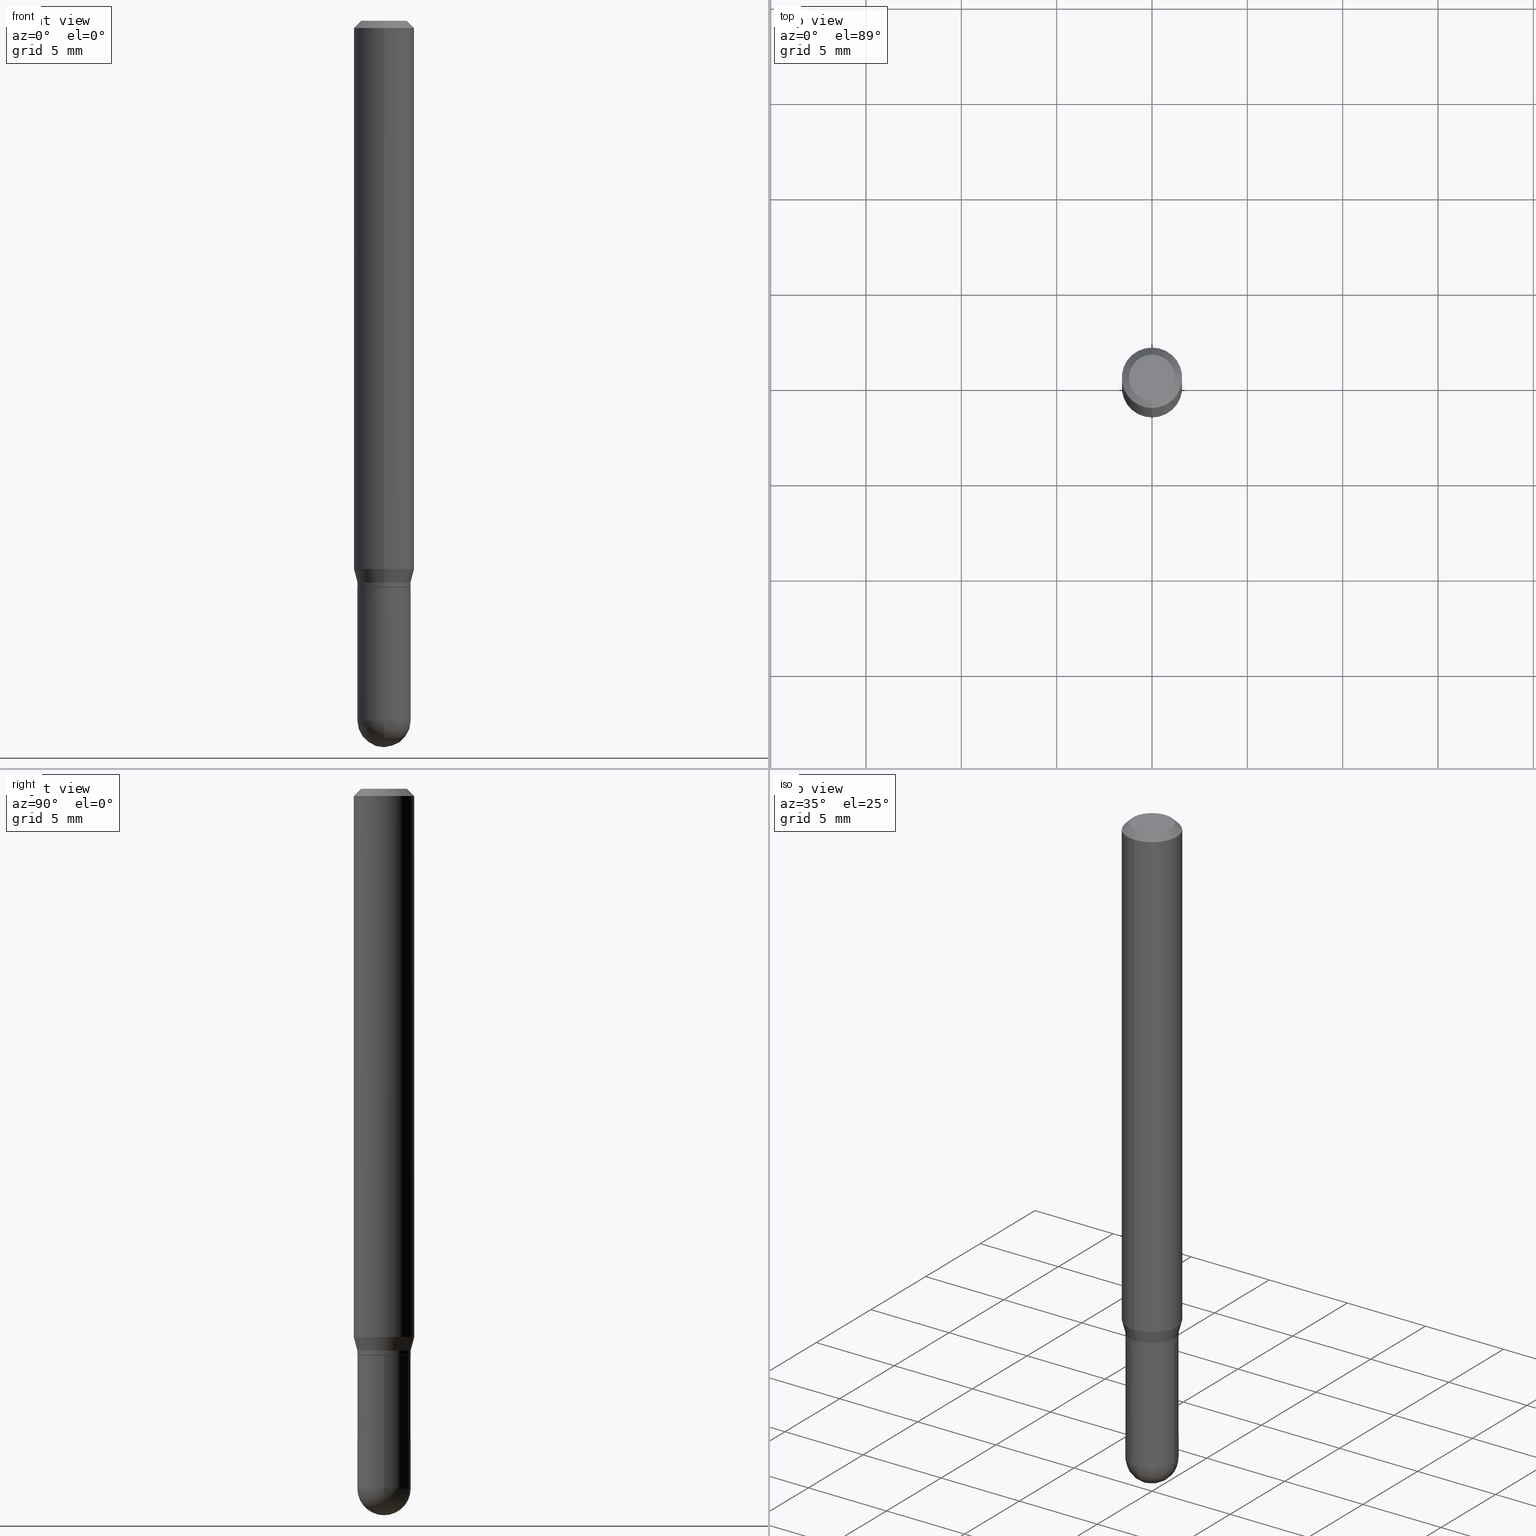
[diagram: canonical four-view strip — front | top / right | iso, engineering-drawing reading convention]
A machine part, canonical four-view strip (front | top / right | iso — engineering-drawing reading convention). The complete STEP part file that produces these views, byte-faithful:
ISO-10303-21;
HEADER;
FILE_DESCRIPTION (( 'STEP AP203' ),
    '1' );
FILE_NAME ('00510.STEP',
    '2024-03-07T17:59:53',
    ( '' ),
    ( '' ),
    'SwSTEP 2.0',
    'SolidWorks 2023',
    '' );
FILE_SCHEMA (( 'CONFIG_CONTROL_DESIGN' ));
ENDSEC;

DATA;
#1 = APPROVAL_ROLE ( '' ) ;
#2 = ORIENTED_EDGE ( 'NONE', *, *, #245, .F. ) ;
#3 = ORIENTED_EDGE ( 'NONE', *, *, #153, .T. ) ;
#4 = ORIENTED_EDGE ( 'NONE', *, *, #119, .F. ) ;
#5 = DATE_AND_TIME ( #394, #118 ) ;
#6 = CARTESIAN_POINT ( 'NONE',  ( 3.872457909892831963E-16, 0.05449999999999591282, -1.170000000000000151 ) ) ;
#7 = ORIENTED_EDGE ( 'NONE', *, *, #185, .F. ) ;
#8 = CIRCLE ( 'NONE', #289, 0.04749999999999999362 ) ;
#9 = DIRECTION ( 'NONE',  ( -6.982962677686266711E-15, -1.000000000000000000, 3.491921625732121546E-15 ) ) ;
#10 = CARTESIAN_POINT ( 'NONE',  ( 3.528999010347036160E-29, -5.051926092023656149E-15, -1.445000000000000062 ) ) ;
#11 = CARTESIAN_POINT ( 'NONE',  ( 2.861198503236610065E-29, -4.085033166446480067E-15, -1.170000000000000151 ) ) ;
#12 = CARTESIAN_POINT ( 'NONE',  ( 2.836387172372829347E-29, -4.050629085849261104E-15, -1.160000000000000142 ) ) ;
#13 = DIRECTION ( 'NONE',  ( -2.445161355493817803E-29, 3.491921625732120757E-15, 1.000000000000000000 ) ) ;
#14 = CARTESIAN_POINT ( 'NONE',  ( 3.840629472727447874E-16, 0.04749999999999999362, -1.747056831868805136E-16 ) ) ;
#15 = CARTESIAN_POINT ( 'NONE',  ( 2.767946174287279245E-29, -3.952888868924657583E-15, -1.132009618943234486 ) ) ;
#16 = CARTESIAN_POINT ( 'NONE',  ( 3.840629472727801875E-16, 0.05499999999999499040, -1.445000000000000284 ) ) ;
#17 = EDGE_CURVE ( 'NONE', #40, #110, #315, .T. ) ;
#18 = VERTEX_POINT ( 'NONE', #278 ) ;
#19 = AXIS2_PLACEMENT_3D ( 'NONE', #11, #382, #216 ) ;
#20 = FACE_OUTER_BOUND ( 'NONE', #182, .T. ) ;
#21 = DIRECTION ( 'NONE',  ( -1.000000000000000000, 6.982962677686265922E-15, -4.876176775795935793E-29 ) ) ;
#22 = LINE ( 'NONE', #171, #173 ) ;
#23 = EDGE_CURVE ( 'NONE', #110, #311, #362, .T. ) ;
#24 = CYLINDRICAL_SURFACE ( 'NONE', #217, 0.05500000000000013906 ) ;
#25 = AXIS2_PLACEMENT_3D ( 'NONE', #419, #249, #104 ) ;
#26 = DIRECTION ( 'NONE',  ( -2.445161355493817803E-29, 3.491921625732120757E-15, 1.000000000000000000 ) ) ;
#27 = MANIFOLD_SOLID_BREP ( 'Body-Move/Copy2[1]', #510 ) ;
#28 = EDGE_CURVE ( 'NONE', #18, #311, #150, .T. ) ;
#29 = APPROVAL_ROLE ( '' ) ;
#30 = AXIS2_PLACEMENT_3D ( 'NONE', #96, #203, #369 ) ;
#31 = APPROVAL_DATE_TIME ( #297, #161 ) ;
#32 = ORIENTED_EDGE ( 'NONE', *, *, #119, .T. ) ;
#33 = APPROVAL_STATUS ( 'not_yet_approved' ) ;
#34 = ORIENTED_EDGE ( 'NONE', *, *, #300, .T. ) ;
#35 = EDGE_CURVE ( 'NONE', #122, #77, #446, .T. ) ;
#36 = CALENDAR_DATE ( 2024, 7, 3 ) ;
#37 = EDGE_LOOP ( 'NONE', ( #273, #152, #400, #228 ) ) ;
#38 = AXIS2_PLACEMENT_3D ( 'NONE', #10, #240, #408 ) ;
#39 = CONICAL_SURFACE ( 'NONE', #232, 0.05500000000000021538, 0.2617993877991496299 ) ;
#40 = VERTEX_POINT ( 'NONE', #373 ) ;
#41 = DIRECTION ( 'NONE',  ( -2.445468806185136877E-29, 3.491481338843145188E-15, 1.000000000000000000 ) ) ;
#42 = ORIENTED_EDGE ( 'NONE', *, *, #295, .T. ) ;
#43 = DIRECTION ( 'NONE',  ( 6.982962677686265922E-15, 1.000000000000000000, -3.483106191921935554E-15 ) ) ;
#44 = DIRECTION ( 'NONE',  ( -2.445161355493817803E-29, 3.491921625732120757E-15, 1.000000000000000000 ) ) ;
#45 = AXIS2_PLACEMENT_3D ( 'NONE', #15, #165, #132 ) ;
#46 = DIRECTION ( 'NONE',  ( -2.445468806185136597E-29, 3.491481338843145583E-15, 1.000000000000000000 ) ) ;
#47 = CARTESIAN_POINT ( 'NONE',  ( 0.05500000000000000028, -4.469096113719225052E-15, -1.170000000000000151 ) ) ;
#48 = CARTESIAN_POINT ( 'NONE',  ( 2.861198503236610065E-29, -4.085033166446480067E-15, -1.170000000000000151 ) ) ;
#49 = DIRECTION ( 'NONE',  ( -2.445468806185136597E-29, 3.491481338843145583E-15, 1.000000000000000000 ) ) ;
#50 = CARTESIAN_POINT ( 'NONE',  ( -3.840629472727177196E-16, -0.05500000000000426076, -1.160000000000000142 ) ) ;
#51 = CARTESIAN_POINT ( 'NONE',  ( 2.859616205250019689E-29, -4.083802341293715505E-15, -1.169499999999999984 ) ) ;
#52 = EDGE_CURVE ( 'NONE', #207, #74, #88, .T. ) ;
#53 = VERTEX_POINT ( 'NONE', #47 ) ;
#54 = CARTESIAN_POINT ( 'NONE',  ( 3.667742033240729280E-31, -5.237882438598184587E-17, -0.01500000000000000812 ) ) ;
#55 = CARTESIAN_POINT ( 'NONE',  ( 0.05500000000000001416, -4.949174797810157466E-15, -1.445000000000000062 ) ) ;
#56 = CIRCLE ( 'NONE', #503, 0.04749999999999999362 ) ;
#57 = CONICAL_SURFACE ( 'NONE', #199, 0.06250000000000000000, 0.7853981633974483900 ) ;
#58 = CYLINDRICAL_SURFACE ( 'NONE', #301, 0.05500000000000013906 ) ;
#59 = ADVANCED_BREP_SHAPE_REPRESENTATION ( '00510', ( #27, #367, #166 ), #360 ) ;
#60 = CC_DESIGN_DATE_AND_TIME_ASSIGNMENT ( #5, #242, ( #423 ) ) ;
#61 = FACE_OUTER_BOUND ( 'NONE', #473, .T. ) ;
#62 = CARTESIAN_POINT ( 'NONE',  ( -4.364351673553916201E-16, -0.06250000000000000000, 2.182451016082575473E-16 ) ) ;
#63 = VECTOR ( 'NONE', #465, 39.37007874015748854 ) ;
#64 = DIRECTION ( 'NONE',  ( -6.982962677686266711E-15, -1.000000000000000000, 3.491921625732121546E-15 ) ) ;
#65 = CIRCLE ( 'NONE', #349, 0.06250000000000000000 ) ;
#66 = AXIS2_PLACEMENT_3D ( 'NONE', #288, #388, #135 ) ;
#67 = LINE ( 'NONE', #221, #184 ) ;
#68 = EDGE_CURVE ( 'NONE', #430, #317, #65, .T. ) ;
#69 = DIRECTION ( 'NONE',  ( 6.982962677686265922E-15, 1.000000000000000000, -3.483106191921935554E-15 ) ) ;
#70 = CC_DESIGN_APPROVAL ( #302, ( #261 ) ) ;
#71 = ORIENTED_EDGE ( 'NONE', *, *, #215, .T. ) ;
#72 = DIRECTION ( 'NONE',  ( 1.000000000000000000, 0.000000000000000000, 0.000000000000000000 ) ) ;
#73 = ADVANCED_FACE ( 'NONE', ( #238 ), #449, .T. ) ;
#74 = VERTEX_POINT ( 'NONE', #16 ) ;
#75 = COORDINATED_UNIVERSAL_TIME_OFFSET ( 5, 0, .BEHIND. ) ;
#76 = ORIENTED_EDGE ( 'NONE', *, *, #346, .F. ) ;
#77 = VERTEX_POINT ( 'NONE', #281 ) ;
#78 = VERTEX_POINT ( 'NONE', #442 ) ;
#79 = DIRECTION ( 'NONE',  ( 1.000000000000000000, -6.982962677686260400E-15, 0.000000000000000000 ) ) ;
#80 = EDGE_LOOP ( 'NONE', ( #227, #3 ) ) ;
#81 = ADVANCED_FACE ( 'NONE', ( #326 ), #131, .T. ) ;
#82 = CARTESIAN_POINT ( 'NONE',  ( -4.287811248607203282E-16, -0.06250000000000005551, -0.01499999999999979128 ) ) ;
#83 = EDGE_LOOP ( 'NONE', ( #309, #149, #306, #414 ) ) ;
#84 = SHAPE_DEFINITION_REPRESENTATION ( #339, #59 ) ;
#85 = DIRECTION ( 'NONE',  ( -6.982962677686265922E-15, -1.000000000000000000, 2.506282562994736981E-15 ) ) ;
#86 = DIRECTION ( 'NONE',  ( -6.982962677686265922E-15, -1.000000000000000000, 2.483498176058411283E-15 ) ) ;
#87 = AXIS2_PLACEMENT_3D ( 'NONE', #290, #464, #101 ) ;
#88 = CIRCLE ( 'NONE', #38, 0.05500000000000006273 ) ;
#89 = VECTOR ( 'NONE', #327, 39.37007874015748143 ) ;
#90 = ADVANCED_FACE ( 'NONE', ( #494 ), #329, .T. ) ;
#91 = CARTESIAN_POINT ( 'NONE',  ( 4.440892098500625669E-16, 0.06250000000000000000, -2.182451016082575473E-16 ) ) ;
#92 = DIRECTION ( 'NONE',  ( -6.982962677686265922E-15, -1.000000000000000000, 2.483498176058418383E-15 ) ) ;
#93 = ORIENTED_EDGE ( 'NONE', *, *, #493, .F. ) ;
#94 = CARTESIAN_POINT ( 'NONE',  ( 3.533702424937522517E-29, -5.045190534628345684E-15, -1.445000000000000062 ) ) ;
#95 = FACE_OUTER_BOUND ( 'NONE', #480, .T. ) ;
#96 = CARTESIAN_POINT ( 'NONE',  ( 3.528999010347036160E-29, -5.051926092023656149E-15, -1.445000000000000062 ) ) ;
#97 = PRODUCT ( '00510', '00510', '', ( #226 ) ) ;
#98 = DIRECTION ( 'NONE',  ( -4.937700262164674260E-15, -0.7071067811865632269, 0.7071067811865319186 ) ) ;
#99 = AXIS2_PLACEMENT_3D ( 'NONE', #237, #365, #85 ) ;
#100 = CARTESIAN_POINT ( 'NONE',  ( -3.840629472727177196E-16, -0.05500000000000426076, -1.160000000000000142 ) ) ;
#101 = DIRECTION ( 'NONE',  ( 6.982962677686265922E-15, 1.000000000000000000, -3.491921625732120363E-15 ) ) ;
#102 = DIRECTION ( 'NONE',  ( 1.000000000000000000, -6.982962677686265922E-15, 4.876176775795935232E-29 ) ) ;
#103 = AXIS2_PLACEMENT_3D ( 'NONE', #384, #26, #176 ) ;
#104 = DIRECTION ( 'NONE',  ( -7.105427357601001070E-15, -1.000000000000000000, 0.000000000000000000 ) ) ;
#105 = AXIS2_PLACEMENT_3D ( 'NONE', #54, #364, #246 ) ;
#106 = EDGE_CURVE ( 'NONE', #432, #225, #398, .T. ) ;
#107 = CIRCLE ( 'NONE', #293, 0.05500000000000000028 ) ;
#108 = DIRECTION ( 'NONE',  ( -2.445161355493817803E-29, 3.491921625732120363E-15, 1.000000000000000000 ) ) ;
#109 = PERSON_AND_ORGANIZATION ( #461, #381 ) ;
#110 = VERTEX_POINT ( 'NONE', #285 ) ;
#111 = CIRCLE ( 'NONE', #471, 0.05500000000000006273 ) ;
#112 = SECURITY_CLASSIFICATION_LEVEL ( 'unclassified' ) ;
#113 = ORIENTED_EDGE ( 'NONE', *, *, #23, .F. ) ;
#114 = ORIENTED_EDGE ( 'NONE', *, *, #324, .T. ) ;
#115 = ORIENTED_EDGE ( 'NONE', *, *, #229, .F. ) ;
#116 = CARTESIAN_POINT ( 'NONE',  ( -3.805714659338728882E-16, -0.05450000000000408684, -1.169999999999999929 ) ) ;
#117 = EDGE_LOOP ( 'NONE', ( #130, #314, #489, #4 ) ) ;
#118 = LOCAL_TIME ( 12, 59, 53.00000000000000000, #75 ) ;
#119 = EDGE_CURVE ( 'NONE', #74, #379, #425, .T. ) ;
#120 = CIRCLE ( 'NONE', #105, 0.06250000000000000000 ) ;
#121 = DIRECTION ( 'NONE',  ( -2.445161355493817803E-29, 3.491921625732120757E-15, 1.000000000000000000 ) ) ;
#122 = VERTEX_POINT ( 'NONE', #14 ) ;
#123 = PLANE ( 'NONE',  #389 ) ;
#124 = DIRECTION ( 'NONE',  ( -2.445161355493817803E-29, 3.491921625732120363E-15, 1.000000000000000000 ) ) ;
#125 = SPHERICAL_SURFACE ( 'NONE', #30, 0.05500000000000006273 ) ;
#126 = EDGE_CURVE ( 'NONE', #470, #77, #120, .T. ) ;
#127 = APPROVAL_ROLE ( '' ) ;
#128 = DIRECTION ( 'NONE',  ( -6.982962677686265922E-15, -1.000000000000000000, 2.483498176058411283E-15 ) ) ;
#129 = CARTESIAN_POINT ( 'NONE',  ( 4.364351673553919652E-16, 0.06249999999999995143, -0.01500000000000022669 ) ) ;
#130 = ORIENTED_EDGE ( 'NONE', *, *, #52, .F. ) ;
#131 = CYLINDRICAL_SURFACE ( 'NONE', #218, 0.05500000000000001416 ) ;
#132 = DIRECTION ( 'NONE',  ( -6.982962677686265922E-15, -1.000000000000000000, 4.370956789862821150E-15 ) ) ;
#133 = DIRECTION ( 'NONE',  ( -6.982962677686265922E-15, -1.000000000000000000, 2.506282562994736981E-15 ) ) ;
#134 = PLANE ( 'NONE',  #87 ) ;
#135 = DIRECTION ( 'NONE',  ( 1.000000000000000000, -6.982962677686260400E-15, 0.000000000000000000 ) ) ;
#136 = CLOSED_SHELL ( 'NONE', ( #424, #368, #511, #328, #259, #90, #188, #175, #457, #211, #170, #421 ) ) ;
#137 = CARTESIAN_POINT ( 'NONE',  ( 3.890221478286835470E-16, 0.05449999999999591282, -1.170000000000000151 ) ) ;
#138 = CARTESIAN_POINT ( 'NONE',  ( 0.000000000000000000, 0.000000000000000000, 0.000000000000000000 ) ) ;
#139 = EDGE_CURVE ( 'NONE', #53, #78, #396, .T. ) ;
#140 = CARTESIAN_POINT ( 'NONE',  ( 0.000000000000000000, 0.000000000000000000, 0.000000000000000000 ) ) ;
#141 = CC_DESIGN_APPROVAL ( #370, ( #423 ) ) ;
#142 = CARTESIAN_POINT ( 'NONE',  ( 3.667742033240729280E-31, -5.237882438598184587E-17, -0.01500000000000000812 ) ) ;
#143 = APPLICATION_PROTOCOL_DEFINITION ( 'international standard', 'config_control_design', 1994, #316 ) ;
#144 = EDGE_LOOP ( 'NONE', ( #160, #468, #157, #155 ) ) ;
#145 = ADVANCED_FACE ( 'NONE', ( #460 ), #125, .T. ) ;
#146 =( NAMED_UNIT ( * ) SI_UNIT ( $, .STERADIAN. ) SOLID_ANGLE_UNIT ( ) );
#147 = ORIENTED_EDGE ( 'NONE', *, *, #185, .T. ) ;
#148 = PERSON_AND_ORGANIZATION ( #461, #381 ) ;
#149 = ORIENTED_EDGE ( 'NONE', *, *, #17, .T. ) ;
#150 = CIRCLE ( 'NONE', #158, 0.05500000000000021538 ) ;
#151 = AXIS2_PLACEMENT_3D ( 'NONE', #287, #292, #380 ) ;
#152 = ORIENTED_EDGE ( 'NONE', *, *, #106, .T. ) ;
#153 = EDGE_CURVE ( 'NONE', #78, #53, #107, .T. ) ;
#154 = ORIENTED_EDGE ( 'NONE', *, *, #338, .T. ) ;
#155 = ORIENTED_EDGE ( 'NONE', *, *, #35, .F. ) ;
#156 = CARTESIAN_POINT ( 'NONE',  ( 2.161377387017317950E-46, -3.086651284642894233E-32, -8.839405964604785983E-18 ) ) ;
#157 = ORIENTED_EDGE ( 'NONE', *, *, #126, .T. ) ;
#158 = AXIS2_PLACEMENT_3D ( 'NONE', #404, #198, #86 ) ;
#159 = DIRECTION ( 'NONE',  ( -2.445161355493817803E-29, 3.491921625732120757E-15, 1.000000000000000000 ) ) ;
#160 = ORIENTED_EDGE ( 'NONE', *, *, #476, .F. ) ;
#161 = APPROVAL ( #268, 'UNSPECIFIED' ) ;
#162 = CARTESIAN_POINT ( 'NONE',  ( 2.836387172372829347E-29, -4.050629085849261104E-15, -1.160000000000000142 ) ) ;
#163 = DIRECTION ( 'NONE',  ( -6.982962677686265922E-15, -1.000000000000000000, 2.483498176058411283E-15 ) ) ;
#164 = DIRECTION ( 'NONE',  ( -6.982962677686265922E-15, -1.000000000000000000, 4.370956789862821150E-15 ) ) ;
#165 = DIRECTION ( 'NONE',  ( -2.445161355493817803E-29, 3.491921625732120757E-15, 1.000000000000000000 ) ) ;
#166 = AXIS2_PLACEMENT_3D ( 'NONE', #224, #180, #72 ) ;
#167 = EDGE_LOOP ( 'NONE', ( #32, #71, #345, #195, #147 ) ) ;
#168 = PLANE ( 'NONE',  #335 ) ;
#169 = CIRCLE ( 'NONE', #189, 0.05500000000000001416 ) ;
#170 = ADVANCED_FACE ( 'NONE', ( #276 ), #504, .T. ) ;
#171 = CARTESIAN_POINT ( 'NONE',  ( -3.805714659338728882E-16, -0.05450000000000408684, -1.169999999999999929 ) ) ;
#172 = CARTESIAN_POINT ( 'NONE',  ( 0.000000000000000000, 0.000000000000000000, 0.000000000000000000 ) ) ;
#173 = VECTOR ( 'NONE', #98, 39.37007874015748143 ) ;
#174 = DIRECTION ( 'NONE',  ( -6.982962677686265922E-15, -1.000000000000000000, 3.491921625732120363E-15 ) ) ;
#175 = ADVANCED_FACE ( 'NONE', ( #95 ), #57, .T. ) ;
#176 = DIRECTION ( 'NONE',  ( -6.982962677686265922E-15, -1.000000000000000000, 2.506282562994736981E-15 ) ) ;
#177 = LOCAL_TIME ( 12, 59, 53.00000000000000000, #190 ) ;
#178 = DATE_AND_TIME ( #36, #342 ) ;
#179 = AXIS2_PLACEMENT_3D ( 'NONE', #244, #413, #206 ) ;
#180 = DIRECTION ( 'NONE',  ( 0.000000000000000000, 0.000000000000000000, 1.000000000000000000 ) ) ;
#181 = ORIENTED_EDGE ( 'NONE', *, *, #248, .F. ) ;
#182 = EDGE_LOOP ( 'NONE', ( #200, #114, #486, #115 ) ) ;
#183 = PERSON_AND_ORGANIZATION ( #461, #381 ) ;
#184 = VECTOR ( 'NONE', #108, 39.37007874015748143 ) ;
#185 = EDGE_CURVE ( 'NONE', #296, #74, #169, .T. ) ;
#186 = ORIENTED_EDGE ( 'NONE', *, *, #493, .T. ) ;
#187 = VECTOR ( 'NONE', #243, 39.37007874015748143 ) ;
#188 = ADVANCED_FACE ( 'NONE', ( #20 ), #375, .T. ) ;
#189 = AXIS2_PLACEMENT_3D ( 'NONE', #233, #445, #454 ) ;
#190 = COORDINATED_UNIVERSAL_TIME_OFFSET ( 5, 0, .BEHIND. ) ;
#191 = ORIENTED_EDGE ( 'NONE', *, *, #435, .F. ) ;
#192 = ORIENTED_EDGE ( 'NONE', *, *, #338, .F. ) ;
#193 = PERSON_AND_ORGANIZATION ( #461, #381 ) ;
#194 = CARTESIAN_POINT ( 'NONE',  ( 2.859616205250019689E-29, -4.083802341293715505E-15, -1.169499999999999984 ) ) ;
#195 = ORIENTED_EDGE ( 'NONE', *, *, #323, .F. ) ;
#196 = CALENDAR_DATE ( 2024, 7, 3 ) ;
#197 = DIRECTION ( 'NONE',  ( -6.982962677686265922E-15, -1.000000000000000000, 3.483106191921935554E-15 ) ) ;
#198 = DIRECTION ( 'NONE',  ( -2.445161355493817803E-29, 3.491921625732120757E-15, 1.000000000000000000 ) ) ;
#199 = AXIS2_PLACEMENT_3D ( 'NONE', #280, #487, #43 ) ;
#200 = ORIENTED_EDGE ( 'NONE', *, *, #300, .F. ) ;
#201 = DIRECTION ( 'NONE',  ( -2.445161355493817803E-29, 3.491921625732120757E-15, 1.000000000000000000 ) ) ;
#202 = CARTESIAN_POINT ( 'NONE',  ( 2.767946174287279245E-29, -3.952888868924657583E-15, -1.132009618943234486 ) ) ;
#203 = DIRECTION ( 'NONE',  ( -1.000000000000000000, 6.982962677686266711E-15, -4.883557194083112901E-29 ) ) ;
#204 = DIRECTION ( 'NONE',  ( -2.445468806185136597E-29, 3.491481338843145583E-15, 1.000000000000000000 ) ) ;
#205 = CARTESIAN_POINT ( 'NONE',  ( 4.440892098500901277E-16, 0.06249999999999603789, -1.132009618943234708 ) ) ;
#206 = DIRECTION ( 'NONE',  ( 6.982962677686266711E-15, 1.000000000000000000, -4.966996352116836765E-15 ) ) ;
#207 = VERTEX_POINT ( 'NONE', #239 ) ;
#208 = DIRECTION ( 'NONE',  ( -2.445161355493817803E-29, 3.491921625732120757E-15, 1.000000000000000000 ) ) ;
#209 = CYLINDRICAL_SURFACE ( 'NONE', #351, 0.06250000000000000000 ) ;
#210 = APPROVAL_PERSON_ORGANIZATION ( #392, #302, #29 ) ;
#211 = ADVANCED_FACE ( 'NONE', ( #479 ), #123, .F. ) ;
#212 = DIRECTION ( 'NONE',  ( -2.445161355493817803E-29, 3.491921625732120757E-15, 1.000000000000000000 ) ) ;
#213 = FACE_OUTER_BOUND ( 'NONE', #80, .T. ) ;
#214 = CARTESIAN_POINT ( 'NONE',  ( 3.840629472727732850E-16, 0.05499999999999591327, -1.170000000000000151 ) ) ;
#215 = EDGE_CURVE ( 'NONE', #379, #78, #277, .T. ) ;
#216 = DIRECTION ( 'NONE',  ( 1.000000000000000000, -6.982962677686262766E-15, 0.000000000000000000 ) ) ;
#217 = AXIS2_PLACEMENT_3D ( 'NONE', #172, #496, #174 ) ;
#218 = AXIS2_PLACEMENT_3D ( 'NONE', #411, #49, #455 ) ;
#219 = CIRCLE ( 'NONE', #66, 0.05500000000000001416 ) ;
#220 = CARTESIAN_POINT ( 'NONE',  ( -3.773273898774340269E-16, -0.04749999999999999362, 1.570268712576709386E-16 ) ) ;
#221 = CARTESIAN_POINT ( 'NONE',  ( 3.907985046680560410E-16, 0.05500000000000013906, -1.920556894152671051E-16 ) ) ;
#222 = ORIENTED_EDGE ( 'NONE', *, *, #52, .T. ) ;
#223 = PERSON_AND_ORGANIZATION_ROLE ( 'creator' ) ;
#224 = CARTESIAN_POINT ( 'NONE',  ( 0.000000000000000000, 0.000000000000000000, 0.000000000000000000 ) ) ;
#225 = VERTEX_POINT ( 'NONE', #116 ) ;
#226 = MECHANICAL_CONTEXT ( 'NONE', #316, 'mechanical' ) ;
#227 = ORIENTED_EDGE ( 'NONE', *, *, #139, .T. ) ;
#228 = ORIENTED_EDGE ( 'NONE', *, *, #17, .F. ) ;
#229 = EDGE_CURVE ( 'NONE', #77, #470, #330, .T. ) ;
#230 = ORIENTED_EDGE ( 'NONE', *, *, #153, .F. ) ;
#231 = VECTOR ( 'NONE', #124, 39.37007874015748143 ) ;
#232 = AXIS2_PLACEMENT_3D ( 'NONE', #448, #159, #128 ) ;
#233 = CARTESIAN_POINT ( 'NONE',  ( 3.533702424937522517E-29, -5.045190534628345684E-15, -1.445000000000000062 ) ) ;
#234 = ORIENTED_EDGE ( 'NONE', *, *, #506, .T. ) ;
#235 = EDGE_LOOP ( 'NONE', ( #186, #319, #395, #452 ) ) ;
#236 = CC_DESIGN_PERSON_AND_ORGANIZATION_ASSIGNMENT ( #265, #431, ( #423 ) ) ;
#237 = CARTESIAN_POINT ( 'NONE',  ( 2.860838785927766903E-29, -4.085548302106581069E-15, -1.170000000000000151 ) ) ;
#238 = FACE_OUTER_BOUND ( 'NONE', #117, .T. ) ;
#239 = CARTESIAN_POINT ( 'NONE',  ( 3.665851501982462558E-29, -5.240589786962374592E-15, -1.500000000000000222 ) ) ;
#240 = DIRECTION ( 'NONE',  ( 1.000000000000000000, -6.982962677686265922E-15, 4.883557194083112340E-29 ) ) ;
#241 = CIRCLE ( 'NONE', #25, 0.05500000000000006273 ) ;
#242 = DATE_TIME_ROLE ( 'classification_date' ) ;
#243 = DIRECTION ( 'NONE',  ( -2.445161355493817803E-29, 3.491921625732120363E-15, 1.000000000000000000 ) ) ;
#244 = CARTESIAN_POINT ( 'NONE',  ( 3.528999010347036160E-29, -5.051926092023656149E-15, -1.445000000000000062 ) ) ;
#245 = EDGE_CURVE ( 'NONE', #122, #484, #8, .T. ) ;
#246 = DIRECTION ( 'NONE',  ( -6.982962677686265922E-15, -1.000000000000000000, 3.483106191921935554E-15 ) ) ;
#247 = LINE ( 'NONE', #372, #89 ) ;
#248 = EDGE_CURVE ( 'NONE', #484, #470, #438, .T. ) ;
#249 = DIRECTION ( 'NONE',  ( -1.000000000000000000, 7.105427357601001070E-15, -4.926315508542082329E-29 ) ) ;
#250 = CC_DESIGN_APPROVAL ( #161, ( #253 ) ) ;
#251 = AXIS2_PLACEMENT_3D ( 'NONE', #272, #121, #197 ) ;
#252 = DIRECTION ( 'NONE',  ( -6.982962677686265922E-15, -1.000000000000000000, 3.491921625732120757E-15 ) ) ;
#253 = PRODUCT_DEFINITION ( 'UNKNOWN', '', #261, #310 ) ;
#254 = FACE_OUTER_BOUND ( 'NONE', #437, .T. ) ;
#255 = CARTESIAN_POINT ( 'NONE',  ( -4.364351673553912750E-16, -0.06250000000000005551, -0.01499999999999979128 ) ) ;
#256 = CIRCLE ( 'NONE', #103, 0.05449999999999999983 ) ;
#257 = CARTESIAN_POINT ( 'NONE',  ( 3.907985046680849823E-16, 0.05499999999999617001, -1.160000000000000364 ) ) ;
#258 = DATE_TIME_ROLE ( 'creation_date' ) ;
#259 = ADVANCED_FACE ( 'NONE', ( #490 ), #39, .T. ) ;
#260 = CALENDAR_DATE ( 2024, 7, 3 ) ;
#261 = PRODUCT_DEFINITION_FORMATION_WITH_SPECIFIED_SOURCE ( 'ANY', '', #97, .NOT_KNOWN. ) ;
#262 = APPLICATION_PROTOCOL_DEFINITION ( 'international standard', 'config_control_design', 1994, #377 ) ;
#263 = VECTOR ( 'NONE', #458, 39.37007874015748143 ) ;
#264 = EDGE_LOOP ( 'NONE', ( #320, #222, #7, #374 ) ) ;
#265 = PERSON_AND_ORGANIZATION ( #461, #381 ) ;
#266 = EDGE_CURVE ( 'NONE', #311, #18, #492, .T. ) ;
#267 = ORIENTED_EDGE ( 'NONE', *, *, #476, .T. ) ;
#268 = APPROVAL_STATUS ( 'not_yet_approved' ) ;
#269 = ORIENTED_EDGE ( 'NONE', *, *, #323, .T. ) ;
#270 = EDGE_LOOP ( 'NONE', ( #439, #34, #391, #76 ) ) ;
#271 = LOCAL_TIME ( 12, 59, 53.00000000000000000, #341 ) ;
#272 = CARTESIAN_POINT ( 'NONE',  ( 3.667742033240729280E-31, -5.237882438598184587E-17, -0.01500000000000000812 ) ) ;
#273 = ORIENTED_EDGE ( 'NONE', *, *, #284, .F. ) ;
#274 = DIRECTION ( 'NONE',  ( -4.851104656540964275E-15, -0.7071067811865500152, -0.7071067811865450192 ) ) ;
#275 = ORIENTED_EDGE ( 'NONE', *, *, #215, .F. ) ;
#276 = FACE_OUTER_BOUND ( 'NONE', #37, .T. ) ;
#277 = LINE ( 'NONE', #361, #418 ) ;
#278 = CARTESIAN_POINT ( 'NONE',  ( 4.174438572590877276E-16, 0.05499999999999617001, -1.160000000000000364 ) ) ;
#279 = DIRECTION ( 'NONE',  ( -6.982962677686265922E-15, -1.000000000000000000, 2.483498176058411283E-15 ) ) ;
#280 = CARTESIAN_POINT ( 'NONE',  ( 3.667742033240729280E-31, -5.237882438598184587E-17, -0.01500000000000000812 ) ) ;
#281 = CARTESIAN_POINT ( 'NONE',  ( 4.440892098500904235E-16, 0.06249999999999995143, -0.01500000000000022669 ) ) ;
#282 = CONICAL_SURFACE ( 'NONE', #151, 0.05449999999999999983, 0.7853981633974739252 ) ;
#283 = EDGE_CURVE ( 'NONE', #110, #40, #111, .T. ) ;
#284 = EDGE_CURVE ( 'NONE', #432, #40, #485, .T. ) ;
#285 = CARTESIAN_POINT ( 'NONE',  ( -3.840629472727168322E-16, -0.05500000000000420525, -1.169499999999999984 ) ) ;
#286 = DIRECTION ( 'NONE',  ( -6.982962677686265922E-15, -1.000000000000000000, 3.491921625732120757E-15 ) ) ;
#287 = CARTESIAN_POINT ( 'NONE',  ( 2.860838785927766903E-29, -4.085548302106581069E-15, -1.170000000000000151 ) ) ;
#288 = CARTESIAN_POINT ( 'NONE',  ( 3.533702424937522517E-29, -5.045190534628345684E-15, -1.445000000000000062 ) ) ;
#289 = AXIS2_PLACEMENT_3D ( 'NONE', #156, #313, #9 ) ;
#290 = CARTESIAN_POINT ( 'NONE',  ( 3.316907271900976096E-16, 0.04749999999999999362, -1.702859802045781199E-16 ) ) ;
#291 = DIRECTION ( 'NONE',  ( -2.445468806185136597E-29, 3.491481338843145583E-15, 1.000000000000000000 ) ) ;
#292 = DIRECTION ( 'NONE',  ( -2.445161355493817803E-29, 3.491921625732120757E-15, 1.000000000000000000 ) ) ;
#293 = AXIS2_PLACEMENT_3D ( 'NONE', #48, #451, #474 ) ;
#294 =( CONVERSION_BASED_UNIT ( 'INCH', #429 ) LENGTH_UNIT ( ) NAMED_UNIT ( #387 ) );
#295 = EDGE_CURVE ( 'NONE', #379, #354, #512, .T. ) ;
#296 = VERTEX_POINT ( 'NONE', #55 ) ;
#297 = DATE_AND_TIME ( #260, #271 ) ;
#298 =( LENGTH_UNIT ( ) NAMED_UNIT ( * ) SI_UNIT ( $, .METRE. ) );
#299 = ORIENTED_EDGE ( 'NONE', *, *, #435, .T. ) ;
#300 = EDGE_CURVE ( 'NONE', #317, #77, #321, .T. ) ;
#301 = AXIS2_PLACEMENT_3D ( 'NONE', #332, #212, #331 ) ;
#302 = APPROVAL ( #33, 'UNSPECIFIED' ) ;
#303 = PERSON_AND_ORGANIZATION_ROLE ( 'design_owner' ) ;
#304 = VECTOR ( 'NONE', #417, 39.37007874015748143 ) ;
#305 = ORIENTED_EDGE ( 'NONE', *, *, #324, .F. ) ;
#306 = ORIENTED_EDGE ( 'NONE', *, *, #23, .T. ) ;
#307 = APPROVAL_DATE_TIME ( #440, #370 ) ;
#308 = DIRECTION ( 'NONE',  ( -2.445161355493817803E-29, 3.491921625732120757E-15, 1.000000000000000000 ) ) ;
#309 = ORIENTED_EDGE ( 'NONE', *, *, #506, .F. ) ;
#310 = DESIGN_CONTEXT ( 'detailed design', #377, 'design' ) ;
#311 = VERTEX_POINT ( 'NONE', #50 ) ;
#312 = CC_DESIGN_SECURITY_CLASSIFICATION ( #423, ( #261 ) ) ;
#313 = DIRECTION ( 'NONE',  ( -2.445161355493817803E-29, 3.491921625732120757E-15, 1.000000000000000000 ) ) ;
#314 = ORIENTED_EDGE ( 'NONE', *, *, #399, .T. ) ;
#315 = CIRCLE ( 'NONE', #467, 0.05500000000000006273 ) ;
#316 = APPLICATION_CONTEXT ( 'configuration controlled 3d designs of mechanical parts and assemblies' ) ;
#317 = VERTEX_POINT ( 'NONE', #205 ) ;
#318 = DIRECTION ( 'NONE',  ( -2.445161355493817803E-29, 3.491921625732120757E-15, 1.000000000000000000 ) ) ;
#319 = ORIENTED_EDGE ( 'NONE', *, *, #284, .T. ) ;
#320 = ORIENTED_EDGE ( 'NONE', *, *, #399, .F. ) ;
#321 = LINE ( 'NONE', #91, #187 ) ;
#322 = DIRECTION ( 'NONE',  ( 4.937700262164548042E-15, 0.7071067811865451302, -0.7071067811865499042 ) ) ;
#323 = EDGE_CURVE ( 'NONE', #296, #53, #247, .T. ) ;
#324 = EDGE_CURVE ( 'NONE', #317, #430, #450, .T. ) ;
#325 = ORIENTED_EDGE ( 'NONE', *, *, #35, .T. ) ;
#326 = FACE_OUTER_BOUND ( 'NONE', #167, .T. ) ;
#327 = DIRECTION ( 'NONE',  ( -2.445468806185136877E-29, 3.491481338843145188E-15, 1.000000000000000000 ) ) ;
#328 = ADVANCED_FACE ( 'NONE', ( #415 ), #209, .T. ) ;
#329 = CONICAL_SURFACE ( 'NONE', #383, 0.05500000000000021538, 0.2617993877991496299 ) ;
#330 = CIRCLE ( 'NONE', #251, 0.06250000000000000000 ) ;
#331 = DIRECTION ( 'NONE',  ( -6.982962677686265922E-15, -1.000000000000000000, 3.491921625732120363E-15 ) ) ;
#332 = CARTESIAN_POINT ( 'NONE',  ( 0.000000000000000000, 0.000000000000000000, 0.000000000000000000 ) ) ;
#333 = LINE ( 'NONE', #100, #63 ) ;
#334 = LOCAL_TIME ( 12, 59, 53.00000000000000000, #433 ) ;
#335 = AXIS2_PLACEMENT_3D ( 'NONE', #214, #500, #21 ) ;
#336 = CYLINDRICAL_SURFACE ( 'NONE', #488, 0.05500000000000001416 ) ;
#337 = LINE ( 'NONE', #257, #263 ) ;
#338 = EDGE_CURVE ( 'NONE', #18, #317, #337, .T. ) ;
#339 = PRODUCT_DEFINITION_SHAPE ( 'NONE', 'NONE',  #253 ) ;
#340 = CC_DESIGN_PERSON_AND_ORGANIZATION_ASSIGNMENT ( #469, #508, ( #261 ) ) ;
#341 = COORDINATED_UNIVERSAL_TIME_OFFSET ( 5, 0, .BEHIND. ) ;
#342 = LOCAL_TIME ( 12, 59, 53.00000000000000000, #347 ) ;
#343 = DIRECTION ( 'NONE',  ( 2.445161355493817803E-29, -3.491921625732120757E-15, -1.000000000000000000 ) ) ;
#344 = EDGE_LOOP ( 'NONE', ( #192, #359, #299, #305 ) ) ;
#345 = ORIENTED_EDGE ( 'NONE', *, *, #139, .F. ) ;
#346 = EDGE_CURVE ( 'NONE', #430, #470, #376, .T. ) ;
#347 = COORDINATED_UNIVERSAL_TIME_OFFSET ( 5, 0, .BEHIND. ) ;
#348 = ORIENTED_EDGE ( 'NONE', *, *, #68, .F. ) ;
#349 = AXIS2_PLACEMENT_3D ( 'NONE', #202, #13, #164 ) ;
#350 = FACE_OUTER_BOUND ( 'NONE', #144, .T. ) ;
#351 = AXIS2_PLACEMENT_3D ( 'NONE', #140, #420, #252 ) ;
#352 = EDGE_LOOP ( 'NONE', ( #402, #234, #393, #113 ) ) ;
#353 = APPROVAL_STATUS ( 'not_yet_approved' ) ;
#354 = VERTEX_POINT ( 'NONE', #501 ) ;
#355 = ORIENTED_EDGE ( 'NONE', *, *, #245, .T. ) ;
#356 = ADVANCED_FACE ( 'NONE', ( #213 ), #168, .F. ) ;
#357 = DIRECTION ( 'NONE',  ( 5.024295867788190974E-15, 0.7071067811865681119, 0.7071067811865270336 ) ) ;
#358 = ORIENTED_EDGE ( 'NONE', *, *, #266, .T. ) ;
#359 = ORIENTED_EDGE ( 'NONE', *, *, #28, .T. ) ;
#360 =( GEOMETRIC_REPRESENTATION_CONTEXT ( 3 ) GLOBAL_UNCERTAINTY_ASSIGNED_CONTEXT ( ( #478 ) ) GLOBAL_UNIT_ASSIGNED_CONTEXT ( ( #294, #390, #146 ) ) REPRESENTATION_CONTEXT ( 'NONE', 'WORKASPACE' ) );
#361 = CARTESIAN_POINT ( 'NONE',  ( -0.05500000000000001416, 3.907985046680552028E-16, -2.705414299640198712E-30 ) ) ;
#362 = LINE ( 'NONE', #366, #231 ) ;
#363 = VECTOR ( 'NONE', #274, 39.37007874015748143 ) ;
#364 = DIRECTION ( 'NONE',  ( -2.445161355493817803E-29, 3.491921625732120757E-15, 1.000000000000000000 ) ) ;
#365 = DIRECTION ( 'NONE',  ( -2.445161355493817803E-29, 3.491921625732120757E-15, 1.000000000000000000 ) ) ;
#366 = CARTESIAN_POINT ( 'NONE',  ( -3.840629472727455763E-16, -0.05500000000000013906, 1.920556894152671051E-16 ) ) ;
#367 = MANIFOLD_SOLID_BREP ( 'Body-Move/Copy2[2]', #136 ) ;
#368 = ADVANCED_FACE ( 'NONE', ( #378 ), #282, .T. ) ;
#369 = DIRECTION ( 'NONE',  ( 6.982962677686266711E-15, 1.000000000000000000, -4.966996352116836765E-15 ) ) ;
#370 = APPROVAL ( #353, 'UNSPECIFIED' ) ;
#371 = DIRECTION ( 'NONE',  ( 1.000000000000000000, -6.982962677686260400E-15, 0.000000000000000000 ) ) ;
#372 = CARTESIAN_POINT ( 'NONE',  ( 0.05500000000000001416, -3.840629472727447381E-16, 2.681897226687765177E-30 ) ) ;
#373 = CARTESIAN_POINT ( 'NONE',  ( 3.907985046680837497E-16, 0.05499999999999592021, -1.169500000000000206 ) ) ;
#374 = ORIENTED_EDGE ( 'NONE', *, *, #386, .F. ) ;
#375 = CYLINDRICAL_SURFACE ( 'NONE', #482, 0.06250000000000000000 ) ;
#376 = LINE ( 'NONE', #62, #304 ) ;
#377 = APPLICATION_CONTEXT ( 'configuration controlled 3d designs of mechanical parts and assemblies' ) ;
#378 = FACE_OUTER_BOUND ( 'NONE', #235, .T. ) ;
#379 = VERTEX_POINT ( 'NONE', #497 ) ;
#380 = DIRECTION ( 'NONE',  ( -6.982962677686265922E-15, -1.000000000000000000, 2.506282562994736981E-15 ) ) ;
#381 = ORGANIZATION ( 'UNSPECIFIED', 'UNSPECIFIED', '' ) ;
#382 = DIRECTION ( 'NONE',  ( -2.445468806185136597E-29, 3.491481338843145583E-15, 1.000000000000000000 ) ) ;
#383 = AXIS2_PLACEMENT_3D ( 'NONE', #162, #453, #279 ) ;
#384 = CARTESIAN_POINT ( 'NONE',  ( 2.860838785927766903E-29, -4.085548302106581069E-15, -1.170000000000000151 ) ) ;
#385 = EDGE_CURVE ( 'NONE', #225, #110, #22, .T. ) ;
#386 = EDGE_CURVE ( 'NONE', #354, #296, #219, .T. ) ;
#387 = DIMENSIONAL_EXPONENTS ( 1.000000000000000000, 0.000000000000000000, 0.000000000000000000, 0.000000000000000000, 0.000000000000000000, 0.000000000000000000, 0.000000000000000000 ) ;
#388 = DIRECTION ( 'NONE',  ( -2.445468806185136597E-29, 3.491481338843145583E-15, 1.000000000000000000 ) ) ;
#389 = AXIS2_PLACEMENT_3D ( 'NONE', #483, #412, #403 ) ;
#390 =( NAMED_UNIT ( * ) PLANE_ANGLE_UNIT ( ) SI_UNIT ( $, .RADIAN. ) );
#391 = ORIENTED_EDGE ( 'NONE', *, *, #126, .F. ) ;
#392 = PERSON_AND_ORGANIZATION ( #461, #381 ) ;
#393 = ORIENTED_EDGE ( 'NONE', *, *, #266, .F. ) ;
#394 = CALENDAR_DATE ( 2024, 7, 3 ) ;
#395 = ORIENTED_EDGE ( 'NONE', *, *, #283, .F. ) ;
#396 = CIRCLE ( 'NONE', #19, 0.05500000000000000028 ) ;
#397 = EDGE_LOOP ( 'NONE', ( #93, #477 ) ) ;
#398 = CIRCLE ( 'NONE', #459, 0.05449999999999999983 ) ;
#399 = EDGE_CURVE ( 'NONE', #207, #354, #241, .T. ) ;
#400 = ORIENTED_EDGE ( 'NONE', *, *, #385, .T. ) ;
#401 = CARTESIAN_POINT ( 'NONE',  ( 0.000000000000000000, 0.000000000000000000, 0.000000000000000000 ) ) ;
#402 = ORIENTED_EDGE ( 'NONE', *, *, #283, .T. ) ;
#403 = DIRECTION ( 'NONE',  ( -6.982962677686265922E-15, -1.000000000000000000, 3.491921625732120363E-15 ) ) ;
#404 = CARTESIAN_POINT ( 'NONE',  ( 2.836387172372829347E-29, -4.050629085849261104E-15, -1.160000000000000142 ) ) ;
#405 = CONICAL_SURFACE ( 'NONE', #481, 0.06250000000000000000, 0.7853981633974483900 ) ;
#406 = CC_DESIGN_DATE_AND_TIME_ASSIGNMENT ( #427, #258, ( #253 ) ) ;
#407 = CARTESIAN_POINT ( 'NONE',  ( 3.533702424937522517E-29, -5.045190534628345684E-15, -1.445000000000000062 ) ) ;
#408 = DIRECTION ( 'NONE',  ( 6.982962677686265922E-15, 1.000000000000000000, 0.000000000000000000 ) ) ;
#409 = AXIS2_PLACEMENT_3D ( 'NONE', #407, #46, #79 ) ;
#410 = CC_DESIGN_PERSON_AND_ORGANIZATION_ASSIGNMENT ( #148, #472, ( #261 ) ) ;
#411 = CARTESIAN_POINT ( 'NONE',  ( 0.000000000000000000, 0.000000000000000000, 0.000000000000000000 ) ) ;
#412 = DIRECTION ( 'NONE',  ( -2.445161355493817803E-29, 3.491921625732120363E-15, 1.000000000000000000 ) ) ;
#413 = DIRECTION ( 'NONE',  ( -1.000000000000000000, 6.982962677686266711E-15, -4.883557194083112901E-29 ) ) ;
#414 = ORIENTED_EDGE ( 'NONE', *, *, #28, .F. ) ;
#415 = FACE_OUTER_BOUND ( 'NONE', #270, .T. ) ;
#416 = APPROVAL_PERSON_ORGANIZATION ( #193, #370, #127 ) ;
#417 = DIRECTION ( 'NONE',  ( -2.445161355493817803E-29, 3.491921625732120363E-15, 1.000000000000000000 ) ) ;
#418 = VECTOR ( 'NONE', #41, 39.37007874015748143 ) ;
#419 = CARTESIAN_POINT ( 'NONE',  ( 3.528999010347036160E-29, -5.051926092023656149E-15, -1.445000000000000062 ) ) ;
#420 = DIRECTION ( 'NONE',  ( -2.445161355493817803E-29, 3.491921625732120757E-15, 1.000000000000000000 ) ) ;
#421 = ADVANCED_FACE ( 'NONE', ( #456 ), #58, .T. ) ;
#422 = DIRECTION ( 'NONE',  ( -2.445161355493817803E-29, 3.491921625732120757E-15, 1.000000000000000000 ) ) ;
#423 = SECURITY_CLASSIFICATION ( '', '', #112 ) ;
#424 = ADVANCED_FACE ( 'NONE', ( #495 ), #24, .T. ) ;
#425 = CIRCLE ( 'NONE', #436, 0.05500000000000001416 ) ;
#426 = CARTESIAN_POINT ( 'NONE',  ( 2.161377387017317950E-46, -3.086651284642894233E-32, -8.839405964604785983E-18 ) ) ;
#427 = DATE_AND_TIME ( #502, #334 ) ;
#428 = VECTOR ( 'NONE', #322, 39.37007874015748143 ) ;
#429 = LENGTH_MEASURE_WITH_UNIT ( LENGTH_MEASURE( 0.02539999999999999897 ), #298 );
#430 = VERTEX_POINT ( 'NONE', #462 ) ;
#431 = PERSON_AND_ORGANIZATION_ROLE ( 'classification_officer' ) ;
#432 = VERTEX_POINT ( 'NONE', #137 ) ;
#433 = COORDINATED_UNIVERSAL_TIME_OFFSET ( 5, 0, .BEHIND. ) ;
#434 = EDGE_LOOP ( 'NONE', ( #358, #154, #348, #191 ) ) ;
#435 = EDGE_CURVE ( 'NONE', #311, #430, #333, .T. ) ;
#436 = AXIS2_PLACEMENT_3D ( 'NONE', #94, #204, #371 ) ;
#437 = EDGE_LOOP ( 'NONE', ( #275, #42, #509, #269, #230 ) ) ;
#438 = LINE ( 'NONE', #82, #363 ) ;
#439 = ORIENTED_EDGE ( 'NONE', *, *, #68, .T. ) ;
#440 = DATE_AND_TIME ( #196, #177 ) ;
#441 = DIRECTION ( 'NONE',  ( -6.982962677686265922E-15, -1.000000000000000000, 2.483498176058418383E-15 ) ) ;
#442 = CARTESIAN_POINT ( 'NONE',  ( -0.05500000000000000028, -4.174313345869358610E-15, -1.170000000000000151 ) ) ;
#443 = CC_DESIGN_PERSON_AND_ORGANIZATION_ASSIGNMENT ( #109, #303, ( #97 ) ) ;
#444 = PRODUCT_RELATED_PRODUCT_CATEGORY ( 'detail', '', ( #97 ) ) ;
#445 = DIRECTION ( 'NONE',  ( -2.445468806185136597E-29, 3.491481338843145583E-15, 1.000000000000000000 ) ) ;
#446 = LINE ( 'NONE', #129, #428 ) ;
#447 = CARTESIAN_POINT ( 'NONE',  ( 2.860838785927766903E-29, -4.085548302106581069E-15, -1.170000000000000151 ) ) ;
#448 = CARTESIAN_POINT ( 'NONE',  ( 2.836387172372829347E-29, -4.050629085849261104E-15, -1.160000000000000142 ) ) ;
#449 = SPHERICAL_SURFACE ( 'NONE', #179, 0.05500000000000006273 ) ;
#450 = CIRCLE ( 'NONE', #45, 0.06250000000000000000 ) ;
#451 = DIRECTION ( 'NONE',  ( -2.445468806185136597E-29, 3.491481338843145583E-15, 1.000000000000000000 ) ) ;
#452 = ORIENTED_EDGE ( 'NONE', *, *, #385, .F. ) ;
#453 = DIRECTION ( 'NONE',  ( -2.445161355493817803E-29, 3.491921625732120757E-15, 1.000000000000000000 ) ) ;
#454 = DIRECTION ( 'NONE',  ( 1.000000000000000000, -6.982962677686260400E-15, 0.000000000000000000 ) ) ;
#455 = DIRECTION ( 'NONE',  ( 1.000000000000000000, -6.982962677686265922E-15, 4.876176775795935232E-29 ) ) ;
#456 = FACE_OUTER_BOUND ( 'NONE', #83, .T. ) ;
#457 = ADVANCED_FACE ( 'NONE', ( #61 ), #134, .F. ) ;
#458 = DIRECTION ( 'NONE',  ( 1.839019923739595977E-15, 0.2588190451025243477, 0.9659258262890673130 ) ) ;
#459 = AXIS2_PLACEMENT_3D ( 'NONE', #447, #208, #133 ) ;
#460 = FACE_OUTER_BOUND ( 'NONE', #264, .T. ) ;
#461 = PERSON ( 'UNSPECIFIED', 'UNSPECIFIED', 'UNSPECIFIED', ('UNSPECIFIED'), ('UNSPECIFIED'), ('UNSPECIFIED') ) ;
#462 = CARTESIAN_POINT ( 'NONE',  ( -4.364351673553640100E-16, -0.06250000000000395517, -1.132009618943234264 ) ) ;
#463 = ADVANCED_FACE ( 'NONE', ( #254 ), #336, .T. ) ;
#464 = DIRECTION ( 'NONE',  ( 2.445161355493817803E-29, -3.491921625732120363E-15, -1.000000000000000000 ) ) ;
#465 = DIRECTION ( 'NONE',  ( -1.807323732225325801E-15, -0.2588190451025175753, 0.9659258262890690894 ) ) ;
#466 = APPROVAL_PERSON_ORGANIZATION ( #183, #161, #1 ) ;
#467 = AXIS2_PLACEMENT_3D ( 'NONE', #51, #44, #92 ) ;
#468 = ORIENTED_EDGE ( 'NONE', *, *, #248, .T. ) ;
#469 = PERSON_AND_ORGANIZATION ( #461, #381 ) ;
#470 = VERTEX_POINT ( 'NONE', #255 ) ;
#471 = AXIS2_PLACEMENT_3D ( 'NONE', #194, #201, #441 ) ;
#472 = PERSON_AND_ORGANIZATION_ROLE ( 'design_supplier' ) ;
#473 = EDGE_LOOP ( 'NONE', ( #355, #267 ) ) ;
#474 = DIRECTION ( 'NONE',  ( 1.000000000000000000, -6.982962677686262766E-15, 0.000000000000000000 ) ) ;
#475 = PERSON_AND_ORGANIZATION ( #461, #381 ) ;
#476 = EDGE_CURVE ( 'NONE', #484, #122, #56, .T. ) ;
#477 = ORIENTED_EDGE ( 'NONE', *, *, #106, .F. ) ;
#478 = UNCERTAINTY_MEASURE_WITH_UNIT (LENGTH_MEASURE( 1.000000000000000082E-05 ), #294, 'distance_accuracy_value', 'NONE');
#479 = FACE_OUTER_BOUND ( 'NONE', #397, .T. ) ;
#480 = EDGE_LOOP ( 'NONE', ( #181, #2, #325, #507 ) ) ;
#481 = AXIS2_PLACEMENT_3D ( 'NONE', #142, #343, #69 ) ;
#482 = AXIS2_PLACEMENT_3D ( 'NONE', #401, #308, #286 ) ;
#483 = CARTESIAN_POINT ( 'NONE',  ( 2.860838785927766903E-29, -4.085548302106581069E-15, -1.170000000000000151 ) ) ;
#484 = VERTEX_POINT ( 'NONE', #220 ) ;
#485 = LINE ( 'NONE', #6, #498 ) ;
#486 = ORIENTED_EDGE ( 'NONE', *, *, #346, .T. ) ;
#487 = DIRECTION ( 'NONE',  ( 2.445161355493817803E-29, -3.491921625732120757E-15, -1.000000000000000000 ) ) ;
#488 = AXIS2_PLACEMENT_3D ( 'NONE', #138, #291, #102 ) ;
#489 = ORIENTED_EDGE ( 'NONE', *, *, #295, .F. ) ;
#490 = FACE_OUTER_BOUND ( 'NONE', #434, .T. ) ;
#491 = AXIS2_PLACEMENT_3D ( 'NONE', #12, #318, #163 ) ;
#492 = CIRCLE ( 'NONE', #491, 0.05500000000000021538 ) ;
#493 = EDGE_CURVE ( 'NONE', #225, #432, #256, .T. ) ;
#494 = FACE_OUTER_BOUND ( 'NONE', #344, .T. ) ;
#495 = FACE_OUTER_BOUND ( 'NONE', #352, .T. ) ;
#496 = DIRECTION ( 'NONE',  ( -2.445161355493817803E-29, 3.491921625732120757E-15, 1.000000000000000000 ) ) ;
#497 = CARTESIAN_POINT ( 'NONE',  ( -0.05500000000000001416, -4.174313345869358610E-15, -1.445000000000000062 ) ) ;
#498 = VECTOR ( 'NONE', #357, 39.37007874015748143 ) ;
#499 = CC_DESIGN_PERSON_AND_ORGANIZATION_ASSIGNMENT ( #475, #223, ( #253 ) ) ;
#500 = DIRECTION ( 'NONE',  ( 2.438088387897960049E-29, -3.491481338843145188E-15, -1.000000000000000000 ) ) ;
#501 = CARTESIAN_POINT ( 'NONE',  ( -3.907985046680199999E-16, -0.05500000000000507955, -1.444999999999999840 ) ) ;
#502 = CALENDAR_DATE ( 2024, 7, 3 ) ;
#503 = AXIS2_PLACEMENT_3D ( 'NONE', #426, #422, #64 ) ;
#504 = CONICAL_SURFACE ( 'NONE', #99, 0.05449999999999999983, 0.7853981633974739252 ) ;
#505 = APPROVAL_DATE_TIME ( #178, #302 ) ;
#506 = EDGE_CURVE ( 'NONE', #40, #18, #67, .T. ) ;
#507 = ORIENTED_EDGE ( 'NONE', *, *, #229, .T. ) ;
#508 = PERSON_AND_ORGANIZATION_ROLE ( 'creator' ) ;
#509 = ORIENTED_EDGE ( 'NONE', *, *, #386, .T. ) ;
#510 = CLOSED_SHELL ( 'NONE', ( #81, #73, #356, #145, #463 ) ) ;
#511 = ADVANCED_FACE ( 'NONE', ( #350 ), #405, .T. ) ;
#512 = CIRCLE ( 'NONE', #409, 0.05500000000000001416 ) ;
ENDSEC;
END-ISO-10303-21;
